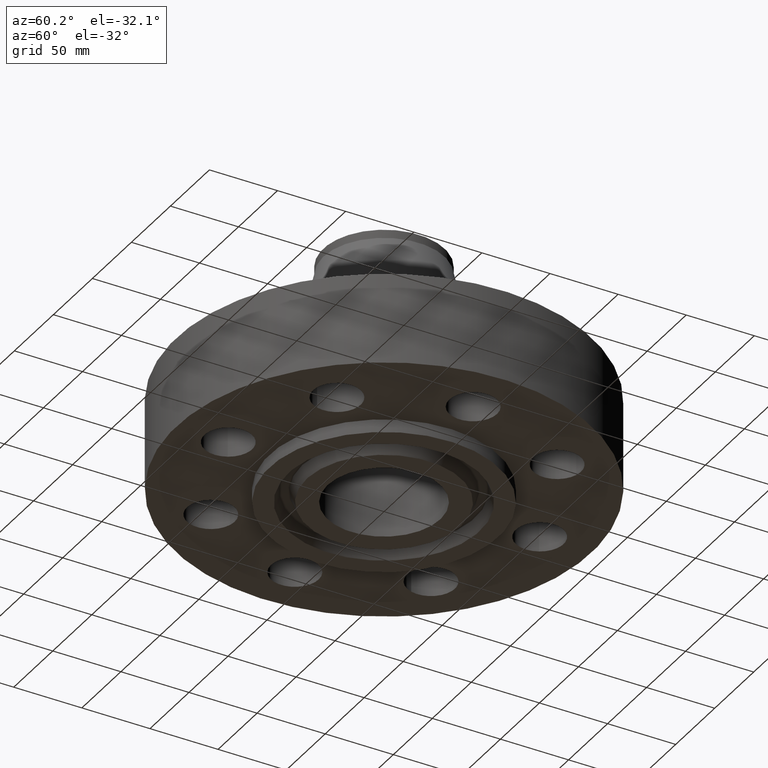
[diagram: clean part render]
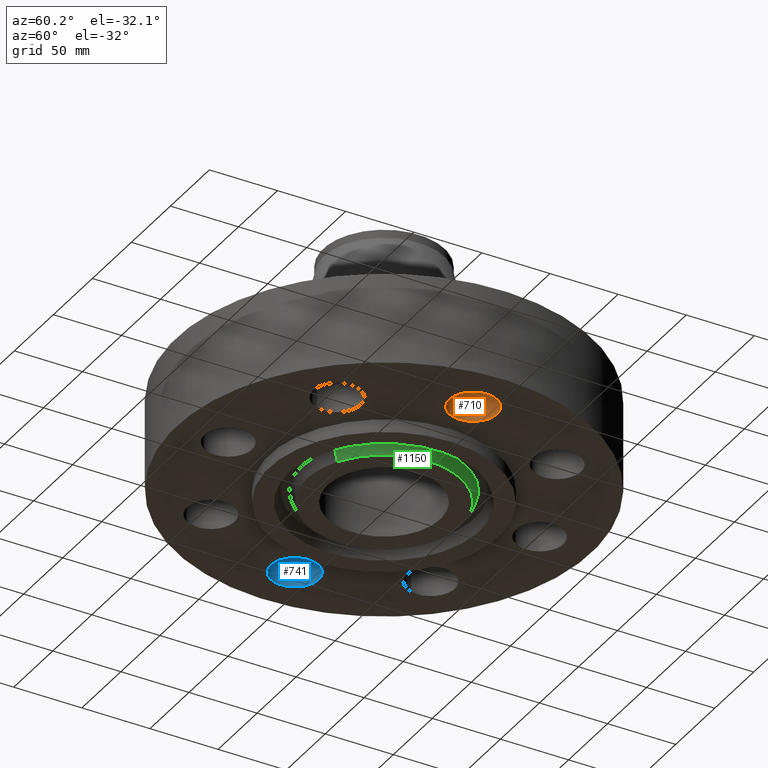
[diagram: same view with three faces highlighted in distinct colors, each labeled with its STEP entity id]
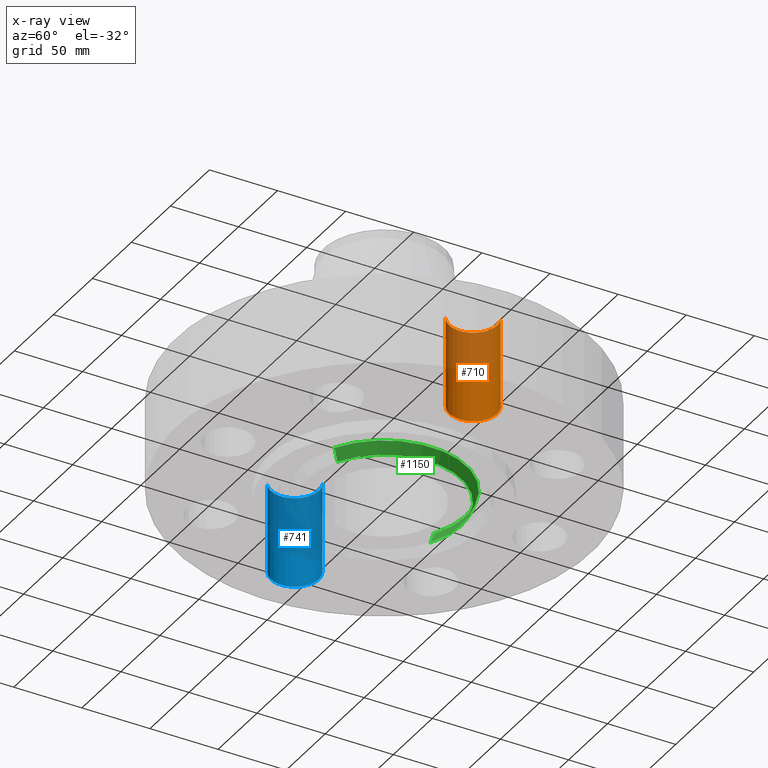
[diagram: x-ray of the same camera — body ghosted, the three highlighted faces saturated]
A machine part, auxiliary view with three faces highlighted in distinct colors.
The next image is the same camera in x-ray (body ghosted, the three faces saturated) — at least one of them is partly hidden behind the body in this view.
Their STEP definitions:

[orange] entity #710 — the highlighted cylindrical surface (edge-blend (fillet) strip) has radius 17.526 mm, axis along (0, -0, -1).
#527=AXIS2_PLACEMENT_3D('Circle Axis2P3D',#525,#526,$) ;
#671=AXIS2_PLACEMENT_3D('Cylinder Axis2P3D',#668,#669,#670) ;
#701=AXIS2_PLACEMENT_3D('Circle Axis2P3D',#699,#700,$) ;
#520=CARTESIAN_POINT('Vertex',(4.83080362166,0.605531967707,0.)) ;
#522=CARTESIAN_POINT('Vertex',(4.16919637838,-0.605531967707,0.)) ;
#525=CARTESIAN_POINT('Axis2P3D Location',(4.50000000002,5.59482469102E-016,0.)) ;
#668=CARTESIAN_POINT('Axis2P3D Location',(4.50000000002,2.75545529809E-016,2.61606299214)) ;
#673=CARTESIAN_POINT('Line Origine',(4.83080362166,0.605531967707,1.31000000001)) ;
#677=CARTESIAN_POINT('Vertex',(4.83080362166,0.605531967707,2.62000000001)) ;
#680=CARTESIAN_POINT('Line Origine',(4.16919637838,-0.605531967707,1.31000000001)) ;
#684=CARTESIAN_POINT('Vertex',(4.16919637838,-0.605531967707,2.62000000001)) ;
#699=CARTESIAN_POINT('Axis2P3D Location',(4.50000000002,2.75545529809E-016,2.62000000001)) ;
#526=DIRECTION('Axis2P3D Direction',(0.,0.,-0.0393700787402)) ;
#669=DIRECTION('Axis2P3D Direction',(0.,-0.,-0.0393700787402)) ;
#670=DIRECTION('Axis2P3D XDirection',(-0.0188750212049,-0.0345504945626,0.)) ;
#674=DIRECTION('Vector Direction',(0.,0.,-0.0393700787402)) ;
#681=DIRECTION('Vector Direction',(0.,0.,-0.0393700787402)) ;
#700=DIRECTION('Axis2P3D Direction',(0.,-0.,-0.0393700787402)) ;
#675=VECTOR('Line Direction',#674,0.0393700787402) ;
#682=VECTOR('Line Direction',#681,0.0393700787402) ;
#705=ORIENTED_EDGE('',*,*,#686,.F.) ;
#706=ORIENTED_EDGE('',*,*,#529,.T.) ;
#707=ORIENTED_EDGE('',*,*,#679,.T.) ;
#708=ORIENTED_EDGE('',*,*,#703,.F.) ;
#710=ADVANCED_FACE('PartBody',(#709),#672,.F.) ;
#528=CIRCLE('generated circle',#527,0.690000000003) ;
#702=CIRCLE('generated circle',#701,0.690000000003) ;
#672=CYLINDRICAL_SURFACE('generated cylinder',#671,0.690000000003) ;
#529=EDGE_CURVE('',#523,#521,#528,.T.) ;
#679=EDGE_CURVE('',#521,#678,#676,.F.) ;
#686=EDGE_CURVE('',#523,#685,#683,.F.) ;
#703=EDGE_CURVE('',#685,#678,#702,.T.) ;
#704=EDGE_LOOP('',(#705,#706,#707,#708)) ;
#709=FACE_OUTER_BOUND('',#704,.T.) ;
#676=LINE('Line',#673,#675) ;
#683=LINE('Line',#680,#682) ;
#521=VERTEX_POINT('',#520) ;
#523=VERTEX_POINT('',#522) ;
#678=VERTEX_POINT('',#677) ;
#685=VERTEX_POINT('',#684) ;

[blue] entity #741 — the highlighted cylindrical surface (edge-blend (fillet) strip) has radius 17.526 mm, axis along (0, 0, -1).
#590=AXIS2_PLACEMENT_3D('Circle Axis2P3D',#588,#589,$) ;
#714=AXIS2_PLACEMENT_3D('Cylinder Axis2P3D',#711,#712,#713) ;
#732=AXIS2_PLACEMENT_3D('Circle Axis2P3D',#730,#731,$) ;
#588=CARTESIAN_POINT('Axis2P3D Location',(-4.50000000002,-1.1189649382E-015,0.)) ;
#592=CARTESIAN_POINT('Vertex',(-4.83080362166,-0.605531967707,0.)) ;
#594=CARTESIAN_POINT('Vertex',(-4.16919637838,0.605531967707,0.)) ;
#711=CARTESIAN_POINT('Axis2P3D Location',(-4.50000000002,-8.26636589428E-016,2.61606299214)) ;
#716=CARTESIAN_POINT('Line Origine',(-4.83080362166,-0.605531967707,1.31000000001)) ;
#720=CARTESIAN_POINT('Vertex',(-4.83080362166,-0.605531967707,2.62000000001)) ;
#723=CARTESIAN_POINT('Line Origine',(-4.16919637838,0.605531967707,1.31000000001)) ;
#727=CARTESIAN_POINT('Vertex',(-4.16919637838,0.605531967707,2.62000000001)) ;
#730=CARTESIAN_POINT('Axis2P3D Location',(-4.50000000002,-8.26636589428E-016,2.62000000001)) ;
#589=DIRECTION('Axis2P3D Direction',(0.,0.,-0.0393700787402)) ;
#712=DIRECTION('Axis2P3D Direction',(0.,0.,-0.0393700787402)) ;
#713=DIRECTION('Axis2P3D XDirection',(0.0188750212049,0.0345504945626,0.)) ;
#717=DIRECTION('Vector Direction',(0.,0.,-0.0393700787402)) ;
#724=DIRECTION('Vector Direction',(0.,0.,-0.0393700787402)) ;
#731=DIRECTION('Axis2P3D Direction',(0.,0.,-0.0393700787402)) ;
#718=VECTOR('Line Direction',#717,0.0393700787402) ;
#725=VECTOR('Line Direction',#724,0.0393700787402) ;
#736=ORIENTED_EDGE('',*,*,#722,.F.) ;
#737=ORIENTED_EDGE('',*,*,#596,.T.) ;
#738=ORIENTED_EDGE('',*,*,#729,.T.) ;
#739=ORIENTED_EDGE('',*,*,#734,.F.) ;
#741=ADVANCED_FACE('PartBody',(#740),#715,.F.) ;
#591=CIRCLE('generated circle',#590,0.690000000003) ;
#733=CIRCLE('generated circle',#732,0.690000000003) ;
#715=CYLINDRICAL_SURFACE('generated cylinder',#714,0.690000000003) ;
#596=EDGE_CURVE('',#593,#595,#591,.T.) ;
#722=EDGE_CURVE('',#593,#721,#719,.F.) ;
#729=EDGE_CURVE('',#595,#728,#726,.F.) ;
#734=EDGE_CURVE('',#721,#728,#733,.T.) ;
#735=EDGE_LOOP('',(#736,#737,#738,#739)) ;
#740=FACE_OUTER_BOUND('',#735,.T.) ;
#719=LINE('Line',#716,#718) ;
#726=LINE('Line',#723,#725) ;
#593=VERTEX_POINT('',#592) ;
#595=VERTEX_POINT('',#594) ;
#721=VERTEX_POINT('',#720) ;
#728=VERTEX_POINT('',#727) ;

[green] entity #1150 — the highlighted conical surface has half-angle 23 deg.
#956=AXIS2_PLACEMENT_3D('Circle Axis2P3D',#954,#955,$) ;
#1100=AXIS2_PLACEMENT_3D('Circle Axis2P3D',#1098,#1099,$) ;
#1132=AXIS2_PLACEMENT_3D('Cone Axis2P3D',#1129,#1130,#1131) ;
#954=CARTESIAN_POINT('Axis2P3D Location',(2.79741234551E-016,2.79741234551E-016,-0.375000000001)) ;
#958=CARTESIAN_POINT('Vertex',(-1.07127636602,1.96095823455,-0.375000000001)) ;
#960=CARTESIAN_POINT('Vertex',(1.07127636602,-1.96095823455,-0.375000000001)) ;
#1095=CARTESIAN_POINT('Vertex',(1.1397791036,-2.0863516546,-0.0383839389053)) ;
#1098=CARTESIAN_POINT('Axis2P3D Location',(0.,0.,-0.0383839389053)) ;
#1102=CARTESIAN_POINT('Vertex',(-1.1397791036,2.0863516546,-0.0383839389053)) ;
#1129=CARTESIAN_POINT('Axis2P3D Location',(0.,0.,-0.435000000002)) ;
#1134=CARTESIAN_POINT('Line Origine',(-1.10552773481,2.02365494457,-0.206691969453)) ;
#1139=CARTESIAN_POINT('Line Origine',(1.10552773481,-2.02365494457,-0.206691969453)) ;
#955=DIRECTION('Axis2P3D Direction',(0.,0.,-0.0393700787402)) ;
#1099=DIRECTION('Axis2P3D Direction',(0.,0.,0.0393700787402)) ;
#1130=DIRECTION('Axis2P3D Direction',(0.,0.,0.0393700787402)) ;
#1131=DIRECTION('Axis2P3D XDirection',(-0.0188750212049,0.0345504945626,0.)) ;
#1135=DIRECTION('Vector Direction',(-0.00737505833565,0.0134999537303,0.0362403485611)) ;
#1140=DIRECTION('Vector Direction',(0.00737505833565,-0.0134999537303,0.0362403485611)) ;
#1136=VECTOR('Line Direction',#1135,0.0393700787402) ;
#1141=VECTOR('Line Direction',#1140,0.0393700787402) ;
#1145=ORIENTED_EDGE('',*,*,#1138,.F.) ;
#1146=ORIENTED_EDGE('',*,*,#1104,.F.) ;
#1147=ORIENTED_EDGE('',*,*,#1143,.T.) ;
#1148=ORIENTED_EDGE('',*,*,#962,.F.) ;
#1150=ADVANCED_FACE('PartBody',(#1149),#1133,.T.) ;
#957=CIRCLE('generated circle',#956,2.23450000001) ;
#1101=CIRCLE('generated circle',#1100,2.37738504068) ;
#1133=CONICAL_SURFACE('Cone',#1132,2.20903151104,0.401425727959) ;
#962=EDGE_CURVE('',#959,#961,#957,.T.) ;
#1104=EDGE_CURVE('',#1096,#1103,#1101,.T.) ;
#1138=EDGE_CURVE('',#1103,#959,#1137,.F.) ;
#1143=EDGE_CURVE('',#1096,#961,#1142,.F.) ;
#1144=EDGE_LOOP('',(#1145,#1146,#1147,#1148)) ;
#1149=FACE_OUTER_BOUND('',#1144,.T.) ;
#1137=LINE('Line',#1134,#1136) ;
#1142=LINE('Line',#1139,#1141) ;
#959=VERTEX_POINT('',#958) ;
#961=VERTEX_POINT('',#960) ;
#1096=VERTEX_POINT('',#1095) ;
#1103=VERTEX_POINT('',#1102) ;